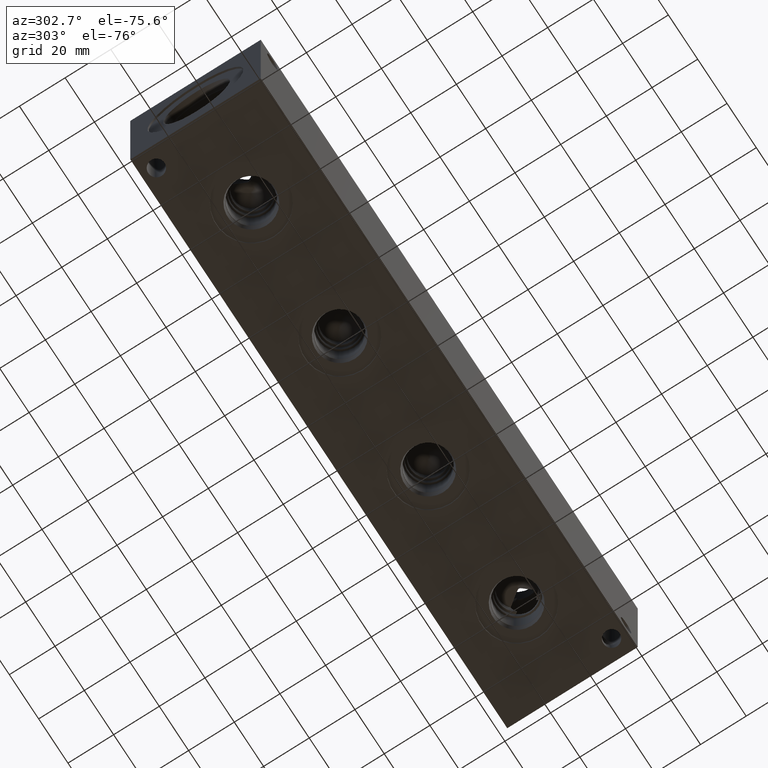
[diagram: clean part render]
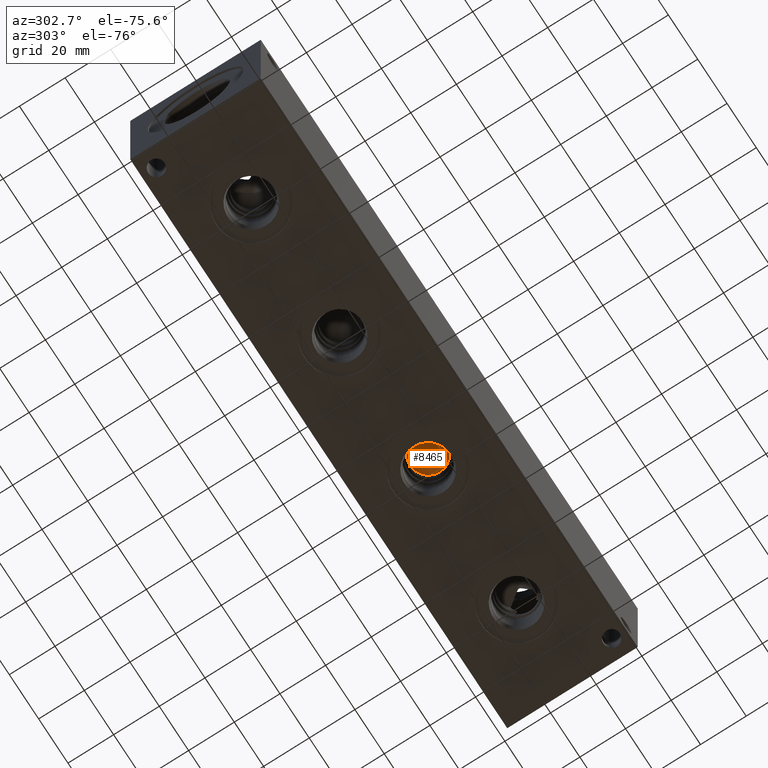
[diagram: same view with one face highlighted and labeled with its STEP entity id]
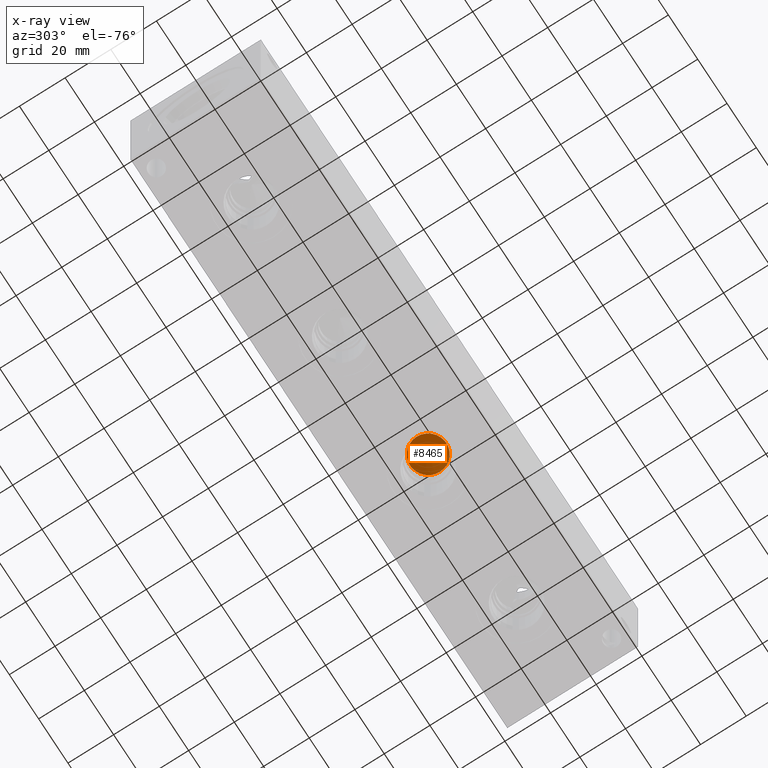
[diagram: x-ray of the same camera — body ghosted, the highlighted face saturated]
A machine part, auxiliary view. The second image highlights one B-rep face of the part: STEP entity #8465.
The next image is the same camera in x-ray: the body ghosted, the highlighted face saturated — about 0% of this face is hidden behind the body in this view.
In plain terms, the highlighted conical surface has half-angle 60 deg.
Its self-contained STEP definition (entity closure, byte-faithful):
#28=CONICAL_SURFACE('',#8863,3.96875,1.0471975511966);
#165=CIRCLE('',#8864,7.9375);
#166=CIRCLE('',#8865,7.9375);
#960=FACE_OUTER_BOUND('',#1437,.T.);
#1437=EDGE_LOOP('',(#7131,#7132,#7133,#7134));
#2245=LINE('',#14145,#3001);
#3001=VECTOR('',#10363,3.96875);
#3938=VERTEX_POINT('',#14141);
#3939=VERTEX_POINT('',#14142);
#3940=VERTEX_POINT('',#14144);
#5046=EDGE_CURVE('',#3938,#3939,#165,.T.);
#5047=EDGE_CURVE('',#3939,#3940,#2245,.T.);
#5048=EDGE_CURVE('',#3939,#3938,#166,.T.);
#7131=ORIENTED_EDGE('',*,*,#5046,.T.);
#7132=ORIENTED_EDGE('',*,*,#5047,.T.);
#7133=ORIENTED_EDGE('',*,*,#5047,.F.);
#7134=ORIENTED_EDGE('',*,*,#5048,.T.);
#8465=ADVANCED_FACE('',(#960),#28,.F.);
#8863=AXIS2_PLACEMENT_3D('',#14140,#10359,#10360);
#8864=AXIS2_PLACEMENT_3D('',#14143,#10361,#10362);
#8865=AXIS2_PLACEMENT_3D('',#14146,#10364,#10365);
#10359=DIRECTION('center_axis',(0.,0.,-1.));
#10360=DIRECTION('ref_axis',(1.,0.,0.));
#10361=DIRECTION('center_axis',(0.,0.,-1.));
#10362=DIRECTION('ref_axis',(1.,0.,0.));
#10363=DIRECTION('',(0.866025403784439,-1.06057523872491E-16,0.5));
#10364=DIRECTION('center_axis',(0.,0.,-1.));
#10365=DIRECTION('ref_axis',(1.,0.,0.));
#14140=CARTESIAN_POINT('Origin',(158.75,28.575,25.5142788808463));
#14141=CARTESIAN_POINT('',(166.6875,28.575,23.22292));
#14142=CARTESIAN_POINT('',(150.8125,28.575,23.22292));
#14143=CARTESIAN_POINT('Origin',(158.75,28.575,23.22292));
#14144=CARTESIAN_POINT('',(158.75,28.575,27.8056377616927));
#14145=CARTESIAN_POINT('',(154.78125,28.575,25.5142788808463));
#14146=CARTESIAN_POINT('Origin',(158.75,28.575,23.22292));